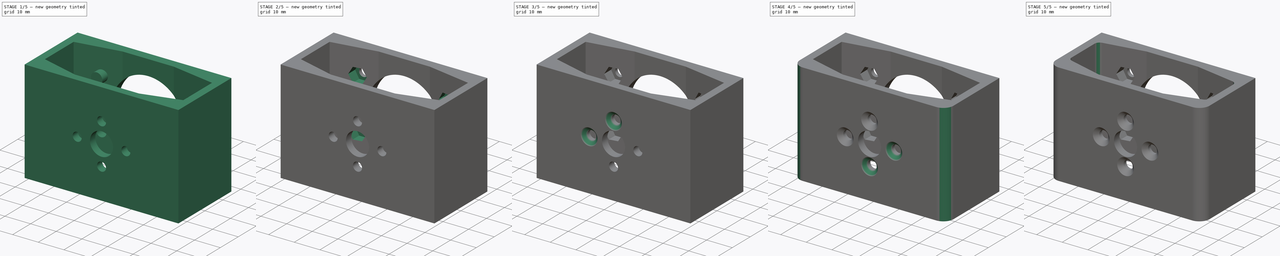
[diagram: build sequence overview — one tinted view per stage of 5, left to right]
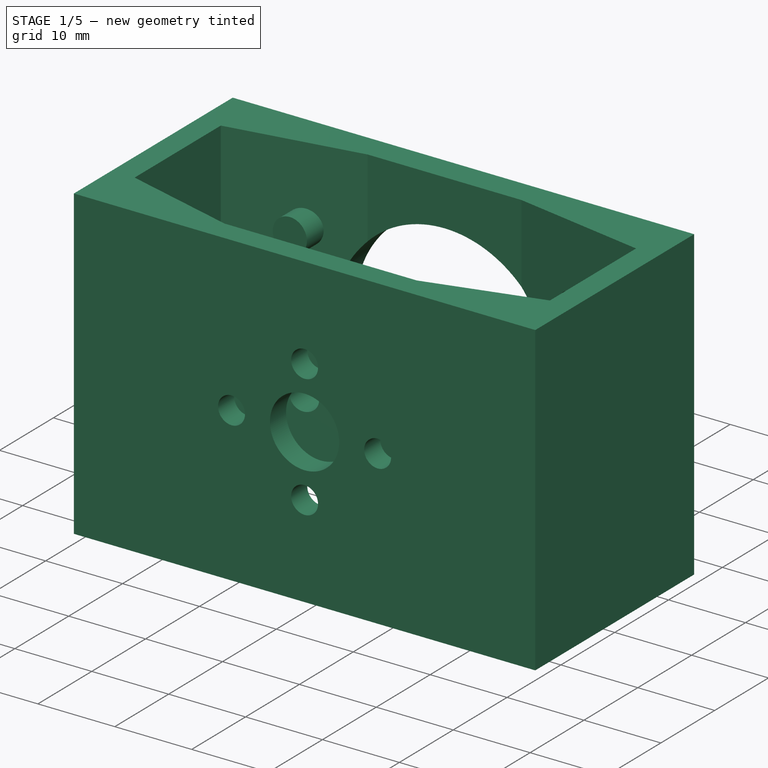
[diagram: stage 1 of 5 — iso view after this stage's code; geometry added in this stage tinted green]
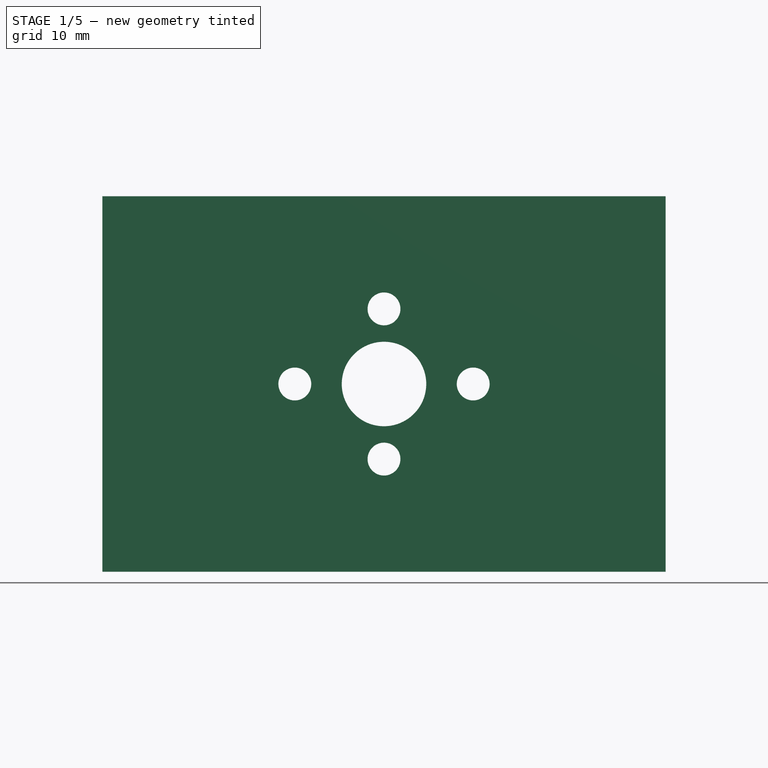
[diagram: stage 1 of 5 — front view after this stage's code; geometry added in this stage tinted green]
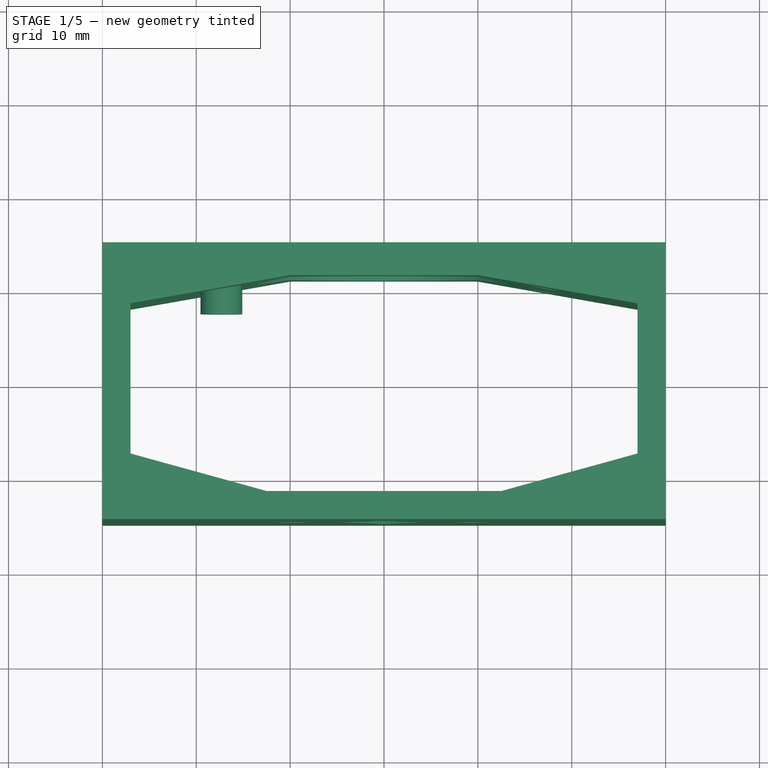
[diagram: stage 1 of 5 — top view after this stage's code; geometry added in this stage tinted green]
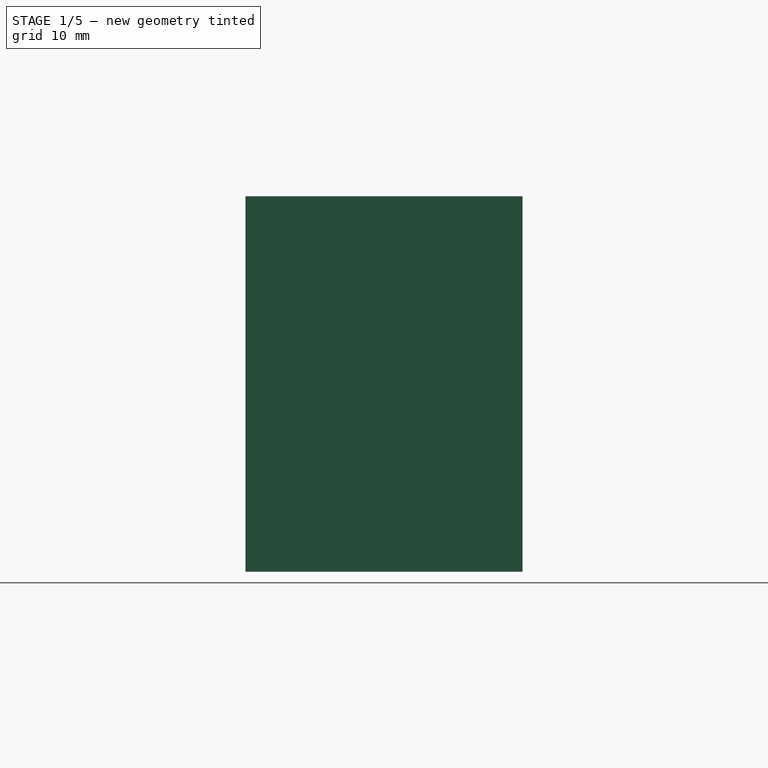
[diagram: stage 1 of 5 — right view after this stage's code; geometry added in this stage tinted green]
FCSTD DOCUMENT  (FreeCAD 0.16R6705 (Git))
Label: MotorMount5010
License: All rights reserved
LicenseURL: http://en.wikipedia.org/wiki/All_rights_reserved
objects: Sketcher::SketchObject×8, PartDesign::Chamfer×6, PartDesign::Fillet×6, PartDesign::Pocket×5, PartDesign::Pad×2
note: 34 computed .brp shape members not serialized (recipe doc carries the construction recipe); baked Part::Feature solids carry a one-line shape summary decoded from their .brp

FEATURE [Sketcher::SketchObject] Sketch  label="BaseFrame"
  sketch-geometry (13):
    g0: LineSegment StartX=30 StartY=14.75 StartZ=0 EndX=30 EndY=-14.75 EndZ=0
    g1: LineSegment StartX=30 StartY=-14.75 StartZ=0 EndX=-30 EndY=-14.75 EndZ=0
    g2: LineSegment StartX=-30 StartY=-14.75 StartZ=0 EndX=-30 EndY=14.75 EndZ=0
    g3: LineSegment StartX=-27 StartY=-7.75 StartZ=0 EndX=-12.5 EndY=-11.75 EndZ=0
    g4: LineSegment StartX=-12.5 StartY=-11.75 StartZ=0 EndX=12.5 EndY=-11.75 EndZ=0
    g5: LineSegment StartX=12.5 StartY=-11.75 StartZ=0 EndX=27 EndY=-7.75 EndZ=0
    g6: LineSegment StartX=27 StartY=-7.75 StartZ=0 EndX=27 EndY=8.25 EndZ=0
    g7: LineSegment StartX=27 StartY=8.25 StartZ=0 EndX=10 EndY=11.25 EndZ=0
    g8: LineSegment StartX=-10 StartY=11.25 StartZ=0 EndX=-27 EndY=8.25 EndZ=0
    g9: LineSegment StartX=-27 StartY=8.25 StartZ=0 EndX=-27 EndY=-7.75 EndZ=0
    g10: LineSegment [constr] StartX=-27 StartY=8.25 StartZ=0 EndX=27 EndY=8.25 EndZ=0
    g11: LineSegment StartX=-10 StartY=11.25 StartZ=0 EndX=10 EndY=11.25 EndZ=0
    g12: LineSegment StartX=-30 StartY=14.75 StartZ=0 EndX=30 EndY=14.75 EndZ=0
  constraints (36):
    c: Coincident(g0,g1)
    c: Coincident(g1,g2)
    c: Horizontal(g1)
    c: Vertical(g0)
    c: Vertical(g2)
    c: Coincident(g3,g4)
    c: Horizontal(g4)
    c: Coincident(g4,g5)
    c: Coincident(g5,g6)
    c: Vertical(g6)
    c: Coincident(g6,g7)
    c: Coincident(g8,g9)
    c: Coincident(g9,g3)
    c: Vertical(g9)
    c: Symmetric(g1,g0,g-1)
    c: Symmetric(g3,g4,g-2)
    c: Symmetric(g3,g5,g-2)
    c: Symmetric(g7,g8,g-2)
    c: DistanceX(g3,g4) = 25
    c: DistanceY(g4,g5) = 4
    c: DistanceX(g3,g5) = 54
    c: DistanceY(g1,g3) = 3
    c: DistanceY(g4,g6) = 20
    c: Coincident(g10,g8)
    c: Coincident(g10,g6)
    c: Horizontal(g10)
    c: Coincident(g11,g8)
    c: Coincident(g11,g7)
    c: DistanceY(g8,g3) = -23
    c: DistanceX(g1,g0) = 60
    c: DistanceX(g7,g8) = -20
    c: Coincident(g12,g2)
    c: Coincident(g12,g0)
    c: Horizontal(g12)
    c: DistanceY(g4,g2) = 26.5
    c: DistanceY(g6,g0) = 6.5
FEATURE [PartDesign::Pad] Pad
  Length = 40
  Length2 = 100
  Midplane = true
  Sketch = -> Sketch
  Type = 0
FEATURE [Sketcher::SketchObject] Sketch020  label="MountBracketToFixedRing"
  Placement = pos=(0,14.75,0) rot=(0,0.707107,0.707107;3.14159rad)
  Support = -> Pad [Face4]
  sketch-geometry (12):
    g0: LineSegment [constr] StartX=-17.3205 StartY=10 StartZ=0 EndX=17.3205 EndY=10 EndZ=0
    g1: LineSegment [constr] StartX=17.3205 StartY=10 StartZ=0 EndX=17.3205 EndY=-10 EndZ=0
    g2: LineSegment [constr] StartX=17.3205 StartY=-10 StartZ=0 EndX=-17.3205 EndY=-10 EndZ=0
    g3: LineSegment [constr] StartX=-17.3205 StartY=-10 StartZ=0 EndX=-17.3205 EndY=10 EndZ=0
    g4: Circle CenterX=-17.3205 CenterY=10 CenterZ=0 NormalX=0 NormalY=0 NormalZ=1 Radius=1.7
    g5: Circle CenterX=-17.3205 CenterY=-10 CenterZ=0 NormalX=0 NormalY=0 NormalZ=1 Radius=1.7
    g6: Circle CenterX=17.3205 CenterY=10 CenterZ=0 NormalX=0 NormalY=0 NormalZ=1 Radius=1.7
    g7: Circle CenterX=17.3205 CenterY=-10 CenterZ=0 NormalX=0 NormalY=0 NormalZ=1 Radius=1.7
    g8: Circle [constr] CenterX=0 CenterY=0 CenterZ=0 NormalX=0 NormalY=0 NormalZ=1 Radius=20
    g9: Circle CenterX=0 CenterY=0 CenterZ=0 NormalX=0 NormalY=0 NormalZ=1 Radius=14
    g10: LineSegment [constr] StartX=-17.3205 StartY=10 StartZ=0 EndX=0 EndY=0 EndZ=0
    g11: LineSegment [constr] StartX=-17.3205 StartY=-10 StartZ=0 EndX=0 EndY=0 EndZ=0
  constraints (28):
    c: Coincident(g0,g1)
    c: Coincident(g1,g2)
    c: Coincident(g2,g3)
    c: Coincident(g3,g0)
    c: Horizontal(g0)
    c: Horizontal(g2)
    c: Vertical(g1)
    c: Vertical(g3)
    c: Coincident(g4,g0)
    c: Coincident(g6,g0)
    c: Coincident(g7,g1)
    c: Radius(g7) = 1.7
    c: Equal(g7,g6)
    c: Equal(g7,g4)
    c: Equal(g7,g5)
    c: Coincident(g5,g2)
    c: PointOnObject(g0,g8)
    c: PointOnObject(g2,g8)
    c: PointOnObject(g0,g8)
    c: Coincident(g8,g-1)
    c: Coincident(g9,g-1)
    c: Radius(g9) = 14
    c: Radius(g8) = 20
    c: Coincident(g10,g0)
    c: Coincident(g10,g-1)
    c: Coincident(g11,g2)
    c: Coincident(g11,g-1)
    c: Angle(g10,g11) = 1.0472
FEATURE [PartDesign::Pocket] Pocket
  Length = 20
  Sketch = -> Sketch020
  Type = 0
FEATURE [Sketcher::SketchObject] Sketch001  label="MotorMountingHoles"
  Placement = pos=(0,-14.75,0) rot=(1,0,0;1.5708rad)
  Support = -> Pocket [Face3]
  sketch-geometry (5):
    g0: Circle CenterX=0 CenterY=8 CenterZ=0 NormalX=0 NormalY=0 NormalZ=1 Radius=1.75
    g1: Circle CenterX=0 CenterY=-8 CenterZ=0 NormalX=0 NormalY=0 NormalZ=1 Radius=1.75
    g2: Circle CenterX=-9.5 CenterY=0 CenterZ=0 NormalX=0 NormalY=0 NormalZ=1 Radius=1.75
    g3: Circle CenterX=9.5 CenterY=0 CenterZ=0 NormalX=0 NormalY=0 NormalZ=1 Radius=1.75
    g4: Circle CenterX=0 CenterY=0 CenterZ=0 NormalX=0 NormalY=0 NormalZ=1 Radius=4.5
  constraints (12):
    c: Coincident(g-1,g4)
    c: PointOnObject(g3,g-1)
    c: PointOnObject(g0,g-2)
    c: Symmetric(g3,g2,g-1)
    c: Symmetric(g0,g1,g-1)
    c: Radius(g2) = 1.75
    c: Equal(g2,g3)
    c: Equal(g2,g0)
    c: Equal(g2,g1)
    c: Radius(g4) = 4.5
    c: DistanceY(g1,g0) = 16
    c: DistanceX(g2,g3) = 19
FEATURE [PartDesign::Pocket] Pocket001
  Length = 5
  Sketch = -> Sketch001
  Type = 0
FEATURE [Sketcher::SketchObject] Sketch006
  Placement = pos=(0,-14.75,0) rot=(1,0,0;1.5708rad)
  Support = -> Pocket001 [Face3]
  sketch-geometry (13):
    g0: LineSegment [constr] StartX=-28.6 StartY=1.03055 StartZ=0 EndX=-28.6 EndY=5.23055 EndZ=0
    g1: LineSegment [constr] StartX=-27 StartY=15 StartZ=0 EndX=-27 EndY=5.23055 EndZ=0
    g2: GeomPoint [constr] X=-27.8 Y=3.13055 Z=0
    g3: LineSegment [constr] StartX=-28.6 StartY=-5.23055 StartZ=0 EndX=-28.6 EndY=-1.03055 EndZ=0
    g4: GeomPoint [constr] X=-27.8 Y=-3.13055 Z=0
    g5: LineSegment [constr] StartX=-27.8 StartY=-3.13055 StartZ=0 EndX=0 EndY=0 EndZ=0
    g6: LineSegment [constr] StartX=-27.8 StartY=3.13055 StartZ=0 EndX=0 EndY=0 EndZ=0
    g7: LineSegment [constr] StartX=-28.6 StartY=5.23055 StartZ=0 EndX=-26.6 EndY=5.23055 EndZ=0
    g8: LineSegment [constr] StartX=-28.6 StartY=1.03055 StartZ=0 EndX=-26.6 EndY=1.03055 EndZ=0
    g9: LineSegment [constr] StartX=-28.6 StartY=-1.03055 StartZ=0 EndX=-26.6 EndY=-1.03055 EndZ=0
    g10: LineSegment [constr] StartX=-28.6 StartY=-5.23055 StartZ=0 EndX=-26.6 EndY=-5.23055 EndZ=0
    g11: LineSegment [constr] StartX=-26.6 StartY=5.23055 StartZ=0 EndX=-26.6 EndY=1.03055 EndZ=0
    g12: LineSegment [constr] StartX=-26.6 StartY=-1.03055 StartZ=0 EndX=-26.6 EndY=-5.23055 EndZ=0
  constraints (30):
    c: Vertical(g0)
    c: DistanceY(g0,g0) = 4.2
    c: DistanceX(g1,g0) = -1.6
    c: Vertical(g1)
    c: Vertical(g3)
    c: Symmetric(g3,g0,g-1)
    c: Symmetric(g4,g2,g-1)
    c: Coincident(g5,g4)
    c: Coincident(g5,g-1)
    c: Coincident(g6,g2)
    c: Coincident(g6,g-1)
    c: Angle(g6,g5) = 0.224275
    c: Symmetric(g1,g0,g2)
    c: Horizontal(g7)
    c: PointOnObject(g1,g7)
    c: Coincident(g0,g7)
    c: Coincident(g8,g0)
    c: Horizontal(g8)
    c: Coincident(g9,g3)
    c: Horizontal(g9)
    c: Horizontal(g10)
    c: Coincident(g11,g7)
    c: Vertical(g11)
    c: Coincident(g12,g9)
    c: Vertical(g12)
    c: Coincident(g12,g10)
    c: Coincident(g10,g3)
    c: Coincident(g8,g11)
    c: Symmetric(g9,g8,g-1)
    c: DistanceX(g10,g3) = -2
FEATURE [Sketcher::SketchObject] Sketch024  label="NutOffsetPillar"
  Placement = pos=(0,11.25,0) rot=(1,0,0;1.5708rad)
  Support = -> Pocket001 [Face25]
  sketch-geometry (2):
    g0: Circle CenterX=-17.3205 CenterY=10 CenterZ=0 NormalX=0 NormalY=0 NormalZ=1 Radius=2.22057
    g1: LineSegment [constr] StartX=0 StartY=0 StartZ=0 EndX=-17.3205 EndY=10 EndZ=0
  constraints (4):
    c: Coincident(g1,g-1)
    c: Coincident(g1,g0)
    c: Distance(g-1,g0) = 20
    c: Angle(g-2,g1) = 1.0472
FEATURE [PartDesign::Pad] Pad001
  Length = 4
  Length2 = 100
  Sketch = -> Sketch024
  Type = 0
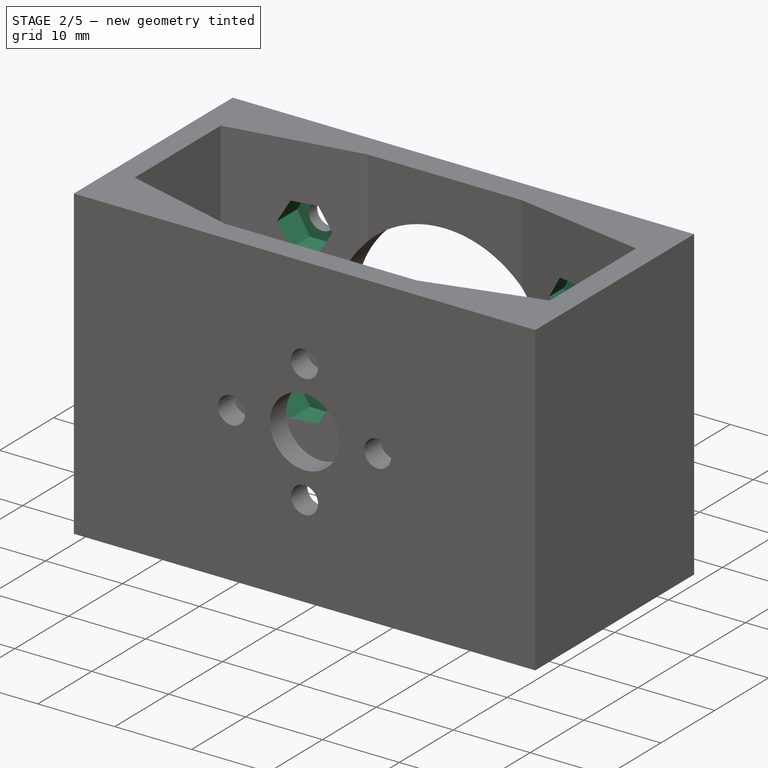
[diagram: stage 2 of 5 — iso view after this stage's code; geometry added in this stage tinted green]
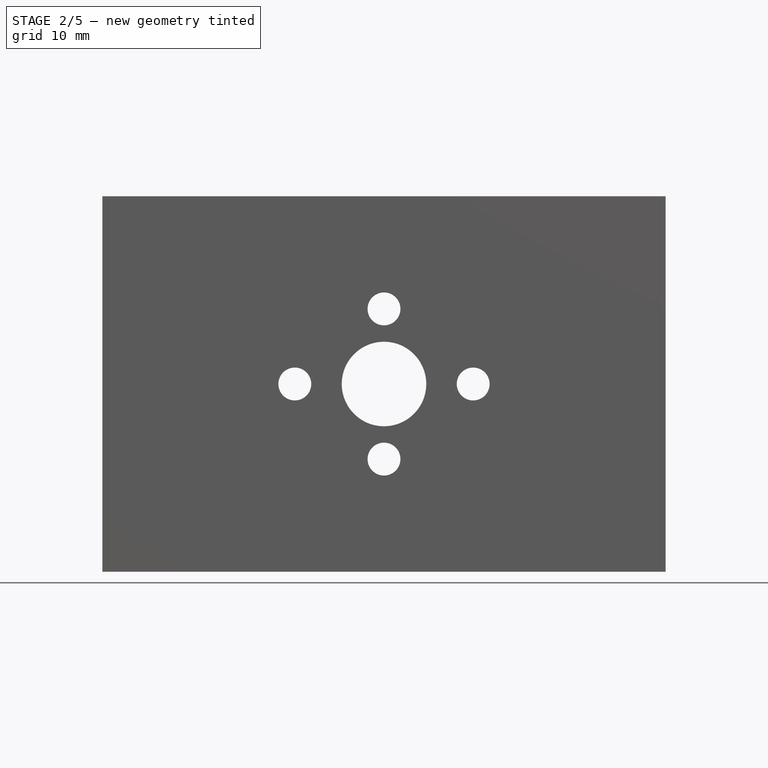
[diagram: stage 2 of 5 — front view after this stage's code; geometry added in this stage tinted green]
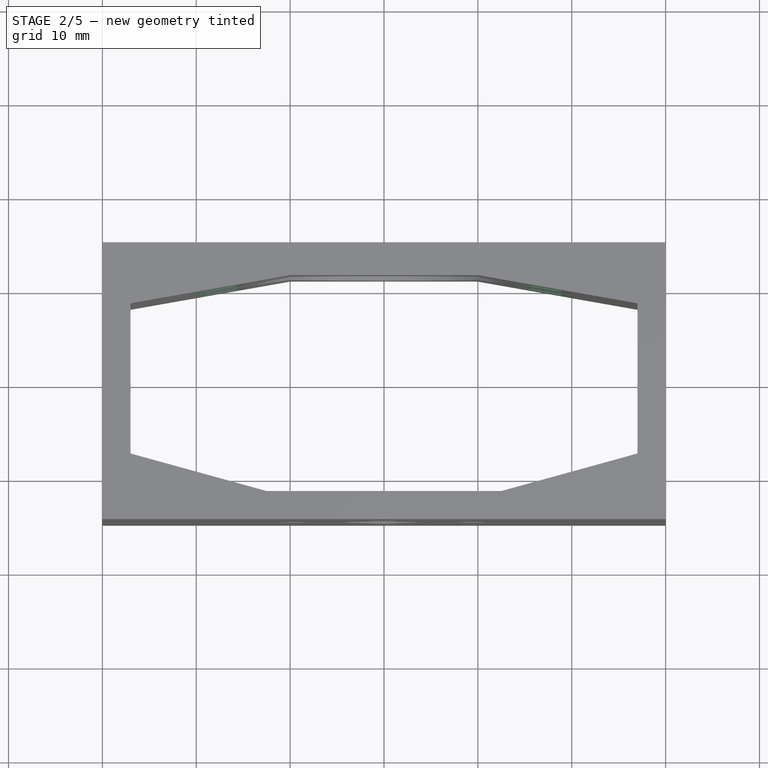
[diagram: stage 2 of 5 — top view after this stage's code; geometry added in this stage tinted green]
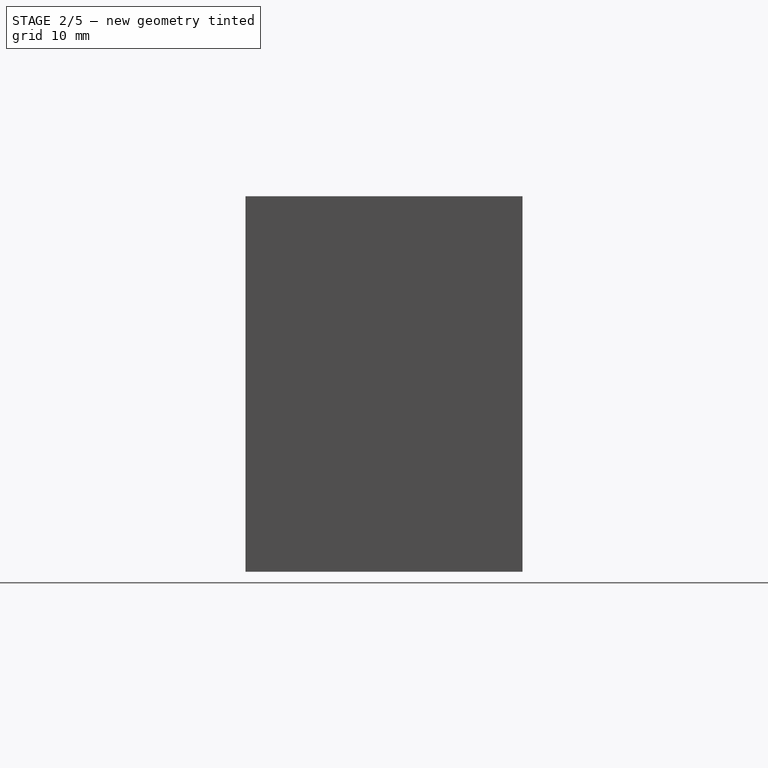
[diagram: stage 2 of 5 — right view after this stage's code; geometry added in this stage tinted green]
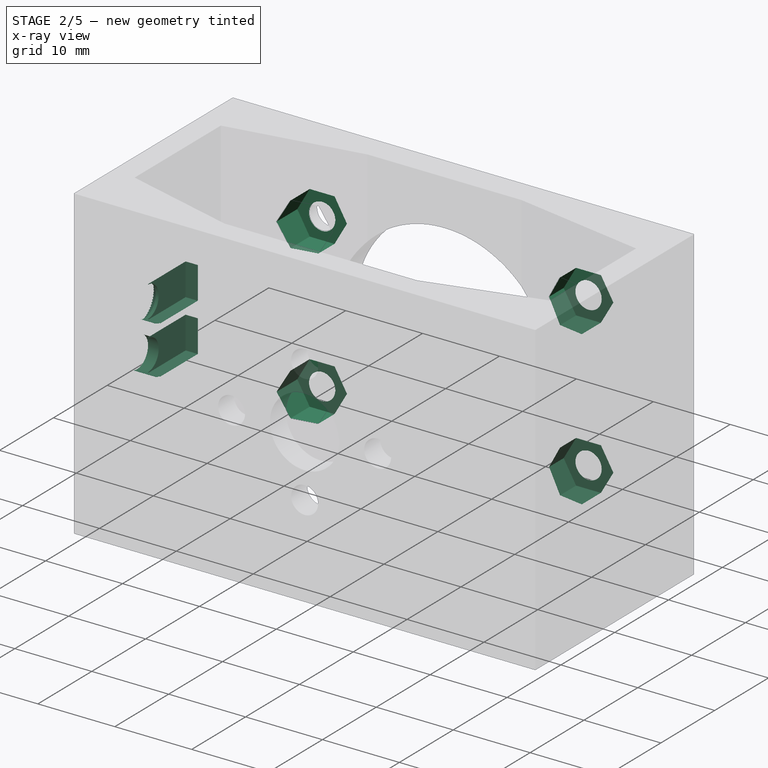
[diagram: stage 2 of 5 — x-ray composite at the iso view; earlier geometry ghosted, this stage's added geometry solid]
FEATURE [Sketcher::SketchObject] Sketch021  label="NutHoles"
  Placement = pos=(0,7.25,0) rot=(1,0,0;1.5708rad)
  Support = -> Pad001 [Face28]
  sketch-geometry (40):
    g0: LineSegment [constr] StartX=-17.3205 StartY=10 StartZ=0 EndX=17.3205 EndY=10 EndZ=0
    g1: LineSegment [constr] StartX=17.3205 StartY=10 StartZ=0 EndX=17.3205 EndY=-10 EndZ=0
    g2: LineSegment [constr] StartX=17.3205 StartY=-10 StartZ=0 EndX=-17.3205 EndY=-10 EndZ=0
    g3: LineSegment [constr] StartX=-17.3205 StartY=-10 StartZ=0 EndX=-17.3205 EndY=10 EndZ=0
    g4: Circle [constr] CenterX=0 CenterY=0 CenterZ=0 NormalX=0 NormalY=0 NormalZ=1 Radius=20
    g5: Circle [constr] CenterX=0 CenterY=0 CenterZ=0 NormalX=0 NormalY=0 NormalZ=1 Radius=14
    g6: LineSegment StartX=-18.9371 StartY=12.8 StartZ=0 EndX=-20.5537 EndY=10 EndZ=0
    g7: LineSegment StartX=-20.5537 StartY=10 StartZ=0 EndX=-18.9371 EndY=7.2 EndZ=0
    g8: LineSegment StartX=-18.9371 StartY=7.2 StartZ=0 EndX=-15.7039 EndY=7.2 EndZ=0
    g9: LineSegment StartX=-15.7039 StartY=7.2 StartZ=0 EndX=-14.0873 EndY=10 EndZ=0
    g10: LineSegment StartX=-14.0873 StartY=10 StartZ=0 EndX=-15.7039 EndY=12.8 EndZ=0
    g11: LineSegment StartX=-15.7039 StartY=12.8 StartZ=0 EndX=-18.9371 EndY=12.8 EndZ=0
    g12: Circle [constr] CenterX=-17.3205 CenterY=10 CenterZ=0 NormalX=0 NormalY=0 NormalZ=1 Radius=3.23316
    g13: LineSegment StartX=15.7039 StartY=12.8 StartZ=0 EndX=14.0873 EndY=10 EndZ=0
    g14: LineSegment StartX=14.0873 StartY=10 StartZ=0 EndX=15.7039 EndY=7.2 EndZ=0
    g15: LineSegment StartX=15.7039 StartY=7.2 StartZ=0 EndX=18.9371 EndY=7.2 EndZ=0
    g16: LineSegment StartX=18.9371 StartY=7.2 StartZ=0 EndX=20.5537 EndY=10 EndZ=0
    g17: LineSegment StartX=20.5537 StartY=10 StartZ=0 EndX=18.9371 EndY=12.8 EndZ=0
    g18: LineSegment StartX=18.9371 StartY=12.8 StartZ=0 EndX=15.7039 EndY=12.8 EndZ=0
    g19: Circle [constr] CenterX=17.3205 CenterY=10 CenterZ=0 NormalX=0 NormalY=0 NormalZ=1 Radius=3.23316
    g20: LineSegment StartX=-18.9371 StartY=-7.2 StartZ=0 EndX=-20.5537 EndY=-10 EndZ=0
    g21: LineSegment StartX=-20.5537 StartY=-10 StartZ=0 EndX=-18.9371 EndY=-12.8 EndZ=0
    g22: LineSegment StartX=-18.9371 StartY=-12.8 StartZ=0 EndX=-15.7039 EndY=-12.8 EndZ=0
    g23: LineSegment StartX=-15.7039 StartY=-12.8 StartZ=0 EndX=-14.0873 EndY=-10 EndZ=0
    g24: LineSegment StartX=-14.0873 StartY=-10 StartZ=0 EndX=-15.7039 EndY=-7.2 EndZ=0
    g25: LineSegment StartX=-15.7039 StartY=-7.2 StartZ=0 EndX=-18.9371 EndY=-7.2 EndZ=0
    g26: Circle [constr] CenterX=-17.3205 CenterY=-10 CenterZ=0 NormalX=0 NormalY=0 NormalZ=1 Radius=3.23316
    g27: LineSegment StartX=15.7039 StartY=-7.2 StartZ=0 EndX=14.0873 EndY=-10 EndZ=0
    g28: LineSegment StartX=14.0873 StartY=-10 StartZ=0 EndX=15.7039 EndY=-12.8 EndZ=0
    g29: LineSegment StartX=15.7039 StartY=-12.8 StartZ=0 EndX=18.9371 EndY=-12.8 EndZ=0
    g30: LineSegment StartX=18.9371 StartY=-12.8 StartZ=0 EndX=20.5537 EndY=-10 EndZ=0
    g31: LineSegment StartX=20.5537 StartY=-10 StartZ=0 EndX=18.9371 EndY=-7.2 EndZ=0
    g32: LineSegment StartX=18.9371 StartY=-7.2 StartZ=0 EndX=15.7039 EndY=-7.2 EndZ=0
    g33: Circle [constr] CenterX=17.3205 CenterY=-10 CenterZ=0 NormalX=0 NormalY=0 NormalZ=1 Radius=3.23316
    g34: LineSegment [constr] StartX=-15.7039 StartY=12.8 StartZ=0 EndX=15.7039 EndY=12.8 EndZ=0
    g35: LineSegment [constr] StartX=-18.9371 StartY=7.2 StartZ=0 EndX=-18.9371 EndY=-7.2 EndZ=0
    g36: LineSegment [constr] StartX=-15.7039 StartY=-7.2 StartZ=0 EndX=15.7039 EndY=-7.2 EndZ=0
    g37: LineSegment [constr] StartX=15.7039 StartY=7.2 StartZ=0 EndX=15.7039 EndY=-7.2 EndZ=0
    g38: LineSegment [constr] StartX=-17.3205 StartY=10 StartZ=0 EndX=0 EndY=0 EndZ=0
    g39: LineSegment [constr] StartX=-17.3205 StartY=-10 StartZ=0 EndX=0 EndY=0 EndZ=0
  constraints (92):
    c: Coincident(g0,g1)
    c: Coincident(g1,g2)
    c: Coincident(g2,g3)
    c: Coincident(g3,g0)
    c: Horizontal(g0)
    c: Horizontal(g2)
    c: Vertical(g1)
    c: Vertical(g3)
    c: PointOnObject(g0,g4)
    c: PointOnObject(g2,g4)
    c: PointOnObject(g0,g4)
    c: Coincident(g4,g-1)
    c: Coincident(g5,g-1)
    c: Radius(g5) = 14
    c: Coincident(g6,g7)
    c: Coincident(g7,g8)
    c: Coincident(g8,g9)
    c: Coincident(g9,g10)
    c: Coincident(g10,g11)
    c: Coincident(g11,g6)
    c: Equal(g6, g7-g11) x5
    c: PointOnObject(g6,g12)
    c: PointOnObject(g7,g12)
    c: PointOnObject(g8,g12)
    c: PointOnObject(g9,g12)
    c: PointOnObject(g10,g12)
    c: PointOnObject(g11,g12)
    c: Coincident(g12,g0)
    c: Coincident(g13,g14)
    c: Coincident(g14,g15)
    c: Coincident(g15,g16)
    c: Coincident(g16,g17)
    c: Coincident(g17,g18)
    c: Coincident(g18,g13)
    c: Equal(g13, g14-g18) x5
    c: PointOnObject(g13,g19)
    c: PointOnObject(g14,g19)
    c: PointOnObject(g15,g19)
    c: PointOnObject(g16,g19)
    c: PointOnObject(g17,g19)
    c: PointOnObject(g18,g19)
    c: Coincident(g19,g0)
    c: Coincident(g20,g21)
    c: Coincident(g21,g22)
    c: Coincident(g22,g23)
    c: Coincident(g23,g24)
    c: Coincident(g24,g25)
    c: Coincident(g25,g20)
    c: Equal(g20, g21-g25) x5
    c: PointOnObject(g20,g26)
    c: PointOnObject(g21,g26)
    c: PointOnObject(g22,g26)
    c: PointOnObject(g23,g26)
    c: PointOnObject(g24,g26)
    c: PointOnObject(g25,g26)
    c: Coincident(g26,g2)
    c: Coincident(g27,g28)
    c: Coincident(g28,g29)
    c: Coincident(g29,g30)
    c: Coincident(g30,g31)
    c: Coincident(g31,g32)
    c: Coincident(g32,g27)
    c: Equal(g27, g28-g32) x5
    c: PointOnObject(g27,g33)
    c: PointOnObject(g28,g33)
    c: PointOnObject(g29,g33)
    c: PointOnObject(g30,g33)
    c: PointOnObject(g31,g33)
    c: PointOnObject(g32,g33)
    c: Coincident(g33,g1)
    c: Horizontal(g22)
    c: Horizontal(g8)
    c: Horizontal(g15)
    c: Horizontal(g29)
    c: Coincident(g34,g10)
    c: Coincident(g34,g13)
    c: Horizontal(g34)
    c: Coincident(g35,g7)
    c: Coincident(g35,g20)
    c: Vertical(g35)
    c: Coincident(g36,g24)
    c: Coincident(g36,g27)
    c: Horizontal(g36)
    c: Coincident(g37,g14)
    c: Coincident(g37,g27)
    c: DistanceY(g7,g6) = 5.6
    c: Radius(g4) = 20
    c: Coincident(g38,g0)
    c: Coincident(g38,g-1)
    c: Coincident(g39,g2)
    c: Coincident(g39,g-1)
    c: Angle(g38,g39) = 1.0472
FEATURE [PartDesign::Pocket] Pocket003
  Length = 6
  Sketch = -> Sketch021
  Type = 0
FEATURE [Sketcher::SketchObject] Sketch022  label="SensorWireHoles"
  Placement = pos=(-30,0,0) rot=(0.57735,-0.57735,-0.57735;2.0944rad)
  Support = -> Pocket003 [Face6]
  sketch-geometry (3):
    g0: Circle CenterX=3 CenterY=3.13 CenterZ=0 NormalX=0 NormalY=0 NormalZ=1 Radius=2
    g1: Circle CenterX=3 CenterY=-3.13 CenterZ=0 NormalX=0 NormalY=0 NormalZ=1 Radius=2
    g2: LineSegment [constr] StartX=3 StartY=3.13 StartZ=0 EndX=3 EndY=-3.13 EndZ=0
  constraints (8):
    c: Coincident(g2,g0)
    c: Coincident(g2,g1)
    c: Vertical(g2)
    c: Symmetric(g1,g0,g-1)
    c: Radius(g0) = 2
    c: Equal(g0,g1)
    c: DistanceX(g-1,g0) = 3
    c: DistanceY(g-1,g0) = 3.13
FEATURE [PartDesign::Pocket] Pocket004
  Length = 5
  Sketch = -> Sketch022
  Type = 2
FEATURE [Sketcher::SketchObject] Sketch023  label="SensorGrooves"
  Placement = pos=(-27,0,0) rot=(0.57735,0.57735,0.57735;2.0944rad)
  Support = -> Pocket004 [Face13]
  sketch-geometry (10):
    g0: LineSegment StartX=-3 StartY=5.23 StartZ=0 EndX=4 EndY=5.23 EndZ=0
    g1: LineSegment StartX=4 StartY=5.23 StartZ=0 EndX=4 EndY=1.03 EndZ=0
    g2: LineSegment StartX=4 StartY=1.03 StartZ=0 EndX=-3 EndY=1.03 EndZ=0
    g3: LineSegment StartX=-3 StartY=1.03 StartZ=0 EndX=-3 EndY=5.23 EndZ=0
    g4: LineSegment StartX=-3 StartY=-1.03 StartZ=0 EndX=4 EndY=-1.03 EndZ=0
    g5: LineSegment StartX=4 StartY=-1.03 StartZ=0 EndX=4 EndY=-5.23 EndZ=0
    g6: LineSegment StartX=4 StartY=-5.23 StartZ=0 EndX=-3 EndY=-5.23 EndZ=0
    g7: LineSegment StartX=-3 StartY=-5.23 StartZ=0 EndX=-3 EndY=-1.03 EndZ=0
    g8: GeomPoint [constr] X=-3 Y=3.13 Z=0
    g9: GeomPoint [constr] X=-3 Y=-3.13 Z=0
  constraints (26):
    c: Coincident(g0,g1)
    c: Coincident(g1,g2)
    c: Coincident(g2,g3)
    c: Coincident(g3,g0)
    c: Horizontal(g0)
    c: Horizontal(g2)
    c: Vertical(g1)
    c: Vertical(g3)
    c: Coincident(g4,g5)
    c: Coincident(g5,g6)
    c: Coincident(g6,g7)
    c: Coincident(g7,g4)
    c: Horizontal(g4)
    c: Horizontal(g6)
    c: Vertical(g5)
    c: Vertical(g7)
    c: Symmetric(g2,g4,g-1)
    c: Symmetric(g0,g5,g-1)
    c: DistanceY(g2,g0) = 4.2
    c: PointOnObject(g8,g3)
    c: PointOnObject(g9,g7)
    c: Symmetric(g2,g0,g8)
    c: Symmetric(g6,g4,g9)
    c: DistanceY(g-1,g8) = 3.13
    c: DistanceX(g0,g0) = 7
    c: DistanceX(g-1,g0) = -3
FEATURE [PartDesign::Pocket] Pocket005  label="FinalBeforeChamfer"
  Length = 1.6
  Sketch = -> Sketch023
  Type = 0
FEATURE [PartDesign::Chamfer] Chamfer
  Base = -> Pocket005 [Edge39]
  Size = 1
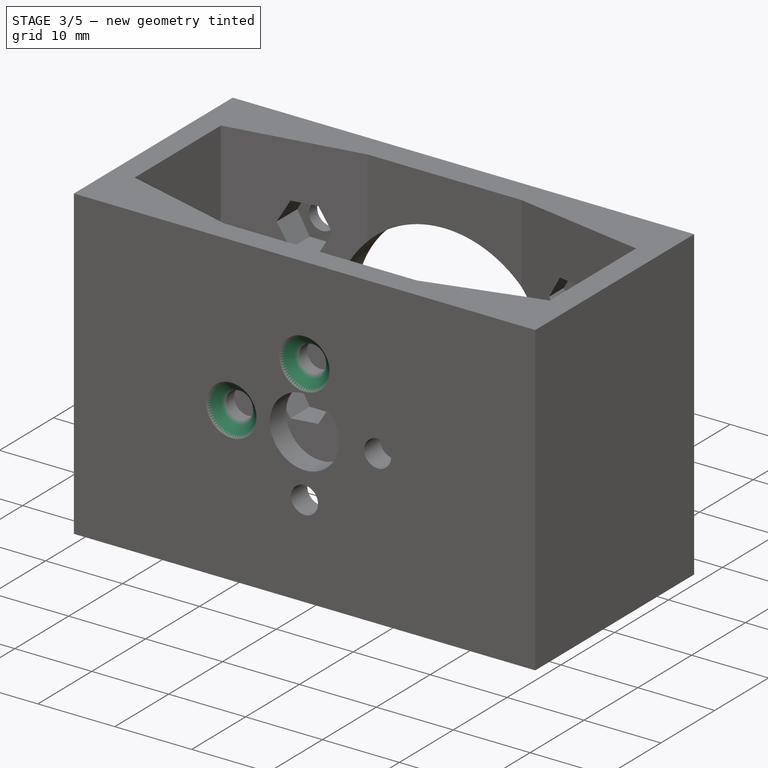
[diagram: stage 3 of 5 — iso view after this stage's code; geometry added in this stage tinted green]
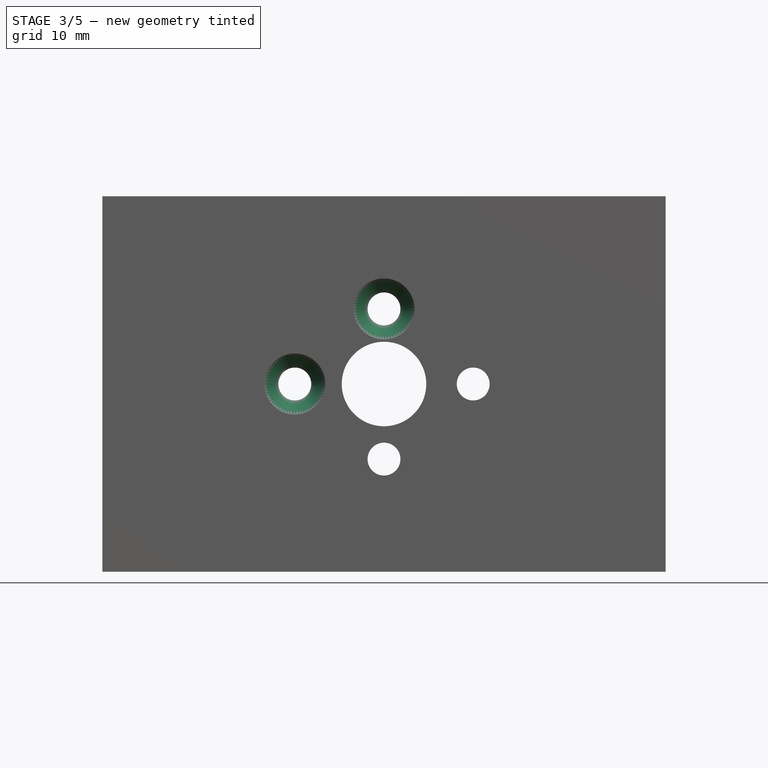
[diagram: stage 3 of 5 — front view after this stage's code; geometry added in this stage tinted green]
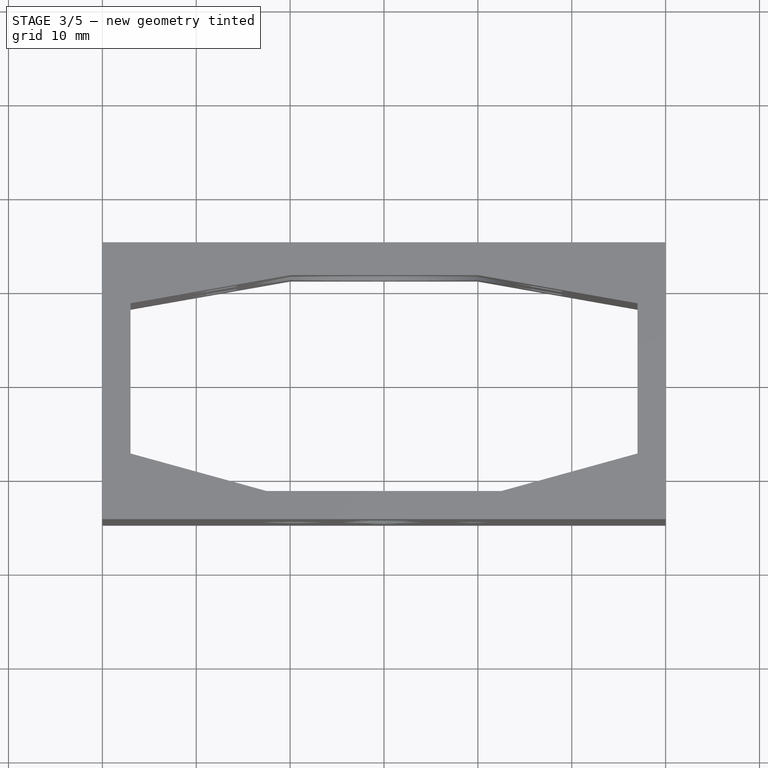
[diagram: stage 3 of 5 — top view after this stage's code; geometry added in this stage tinted green]
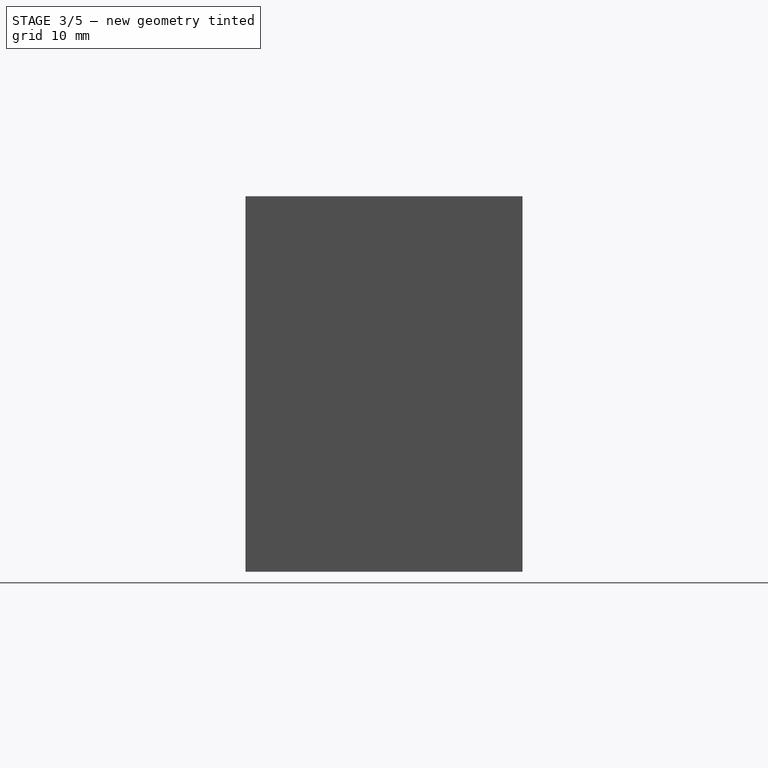
[diagram: stage 3 of 5 — right view after this stage's code; geometry added in this stage tinted green]
FEATURE [PartDesign::Chamfer] Chamfer001
  Base = -> Chamfer [Edge6]
  Size = 1
FEATURE [PartDesign::Chamfer] Chamfer002
  Base = -> Chamfer001 [Edge17]
  Size = 1.5
FEATURE [PartDesign::Chamfer] Chamfer003
  Base = -> Chamfer002 [Edge9]
  Size = 1.5
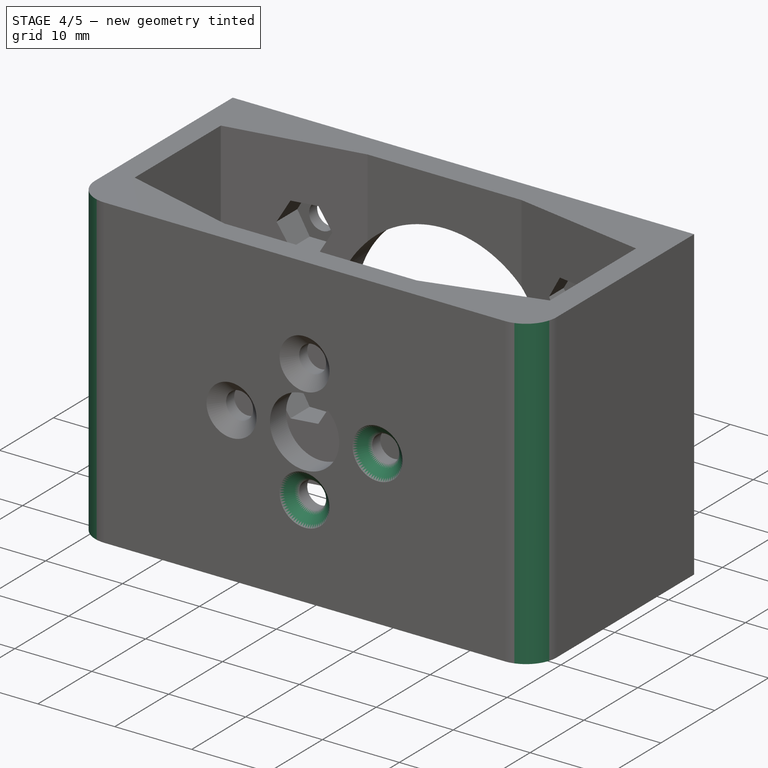
[diagram: stage 4 of 5 — iso view after this stage's code; geometry added in this stage tinted green]
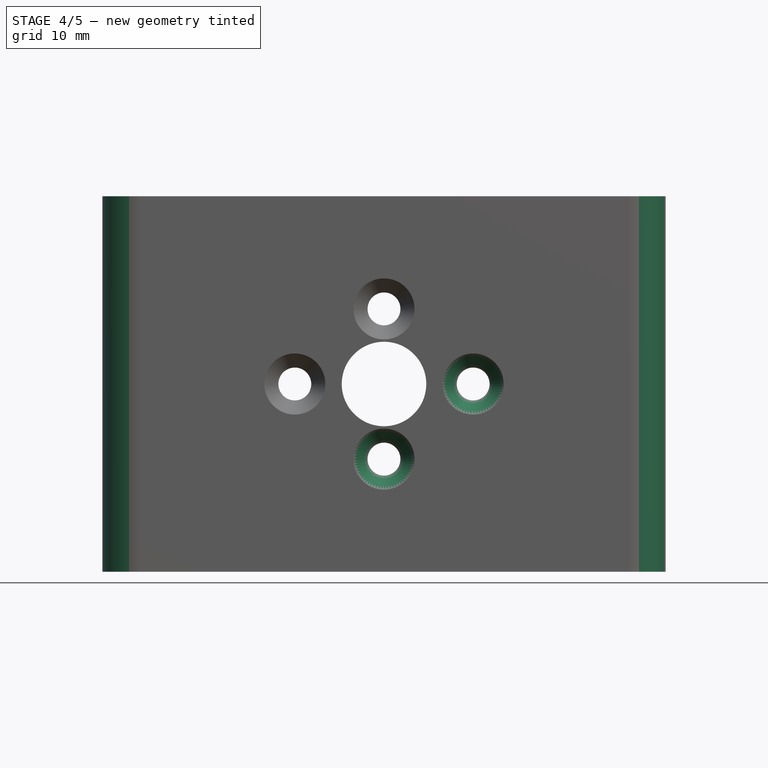
[diagram: stage 4 of 5 — front view after this stage's code; geometry added in this stage tinted green]
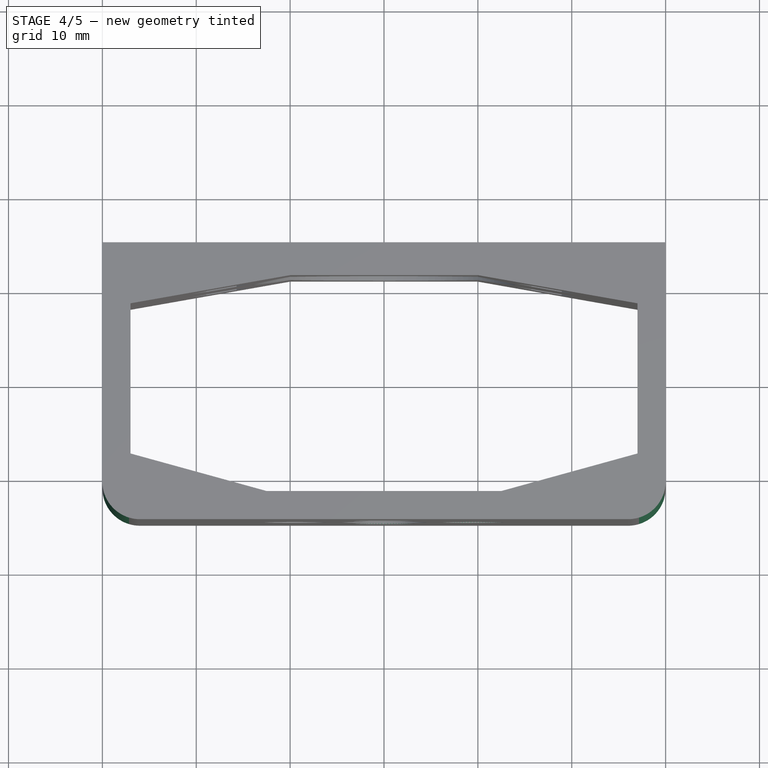
[diagram: stage 4 of 5 — top view after this stage's code; geometry added in this stage tinted green]
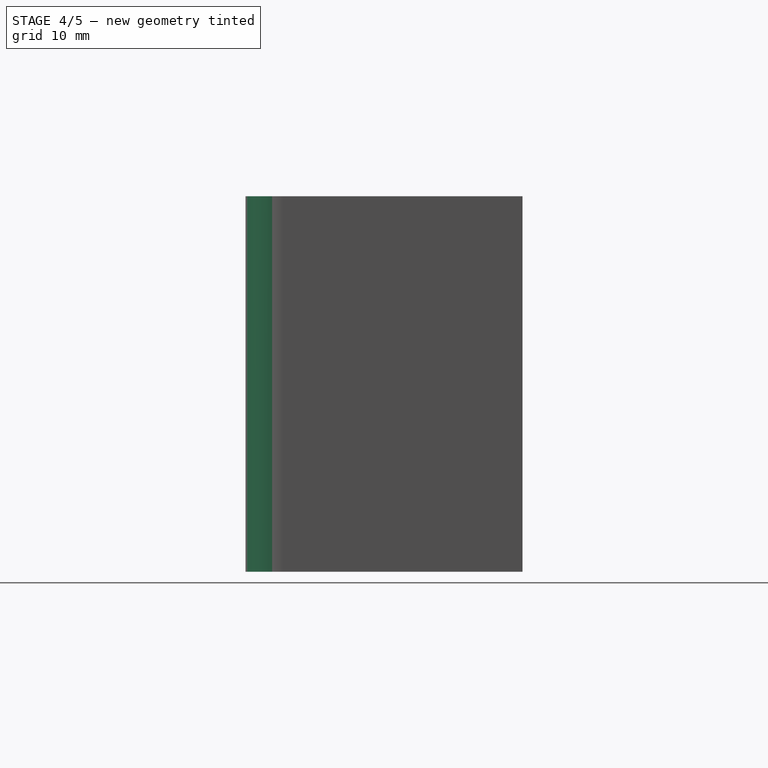
[diagram: stage 4 of 5 — right view after this stage's code; geometry added in this stage tinted green]
FEATURE [PartDesign::Chamfer] Chamfer004
  Base = -> Chamfer003 [Edge8]
  Size = 1.5
FEATURE [PartDesign::Chamfer] Chamfer005
  Base = -> Chamfer004 [Edge9]
  Size = 1.5
FEATURE [PartDesign::Fillet] Fillet
  Base = -> Chamfer005 [Edge8]
  Radius = 4
FEATURE [PartDesign::Fillet] Fillet001
  Base = -> Fillet [Edge3]
  Radius = 4
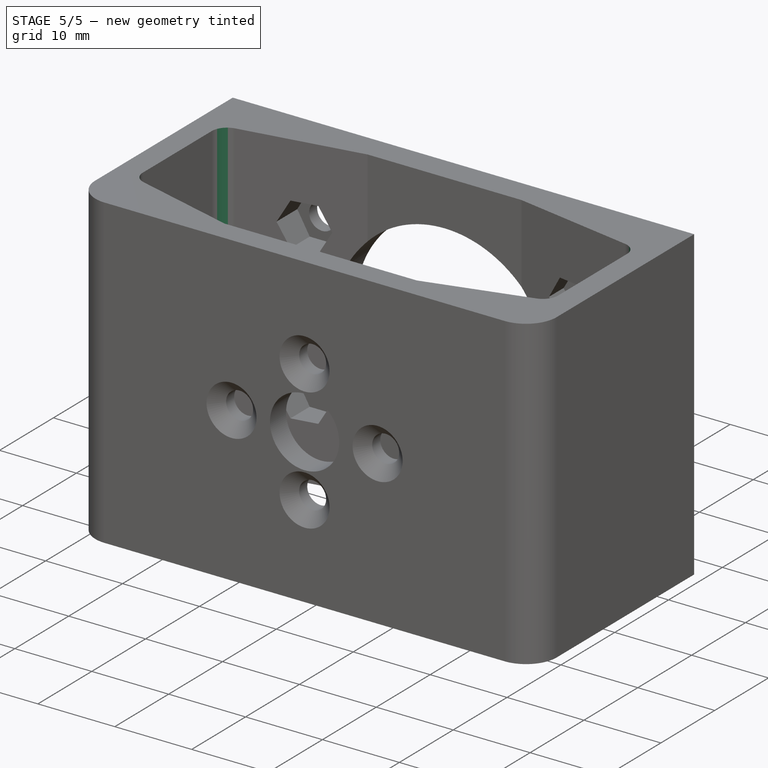
[diagram: stage 5 of 5 — iso view after this stage's code; geometry added in this stage tinted green]
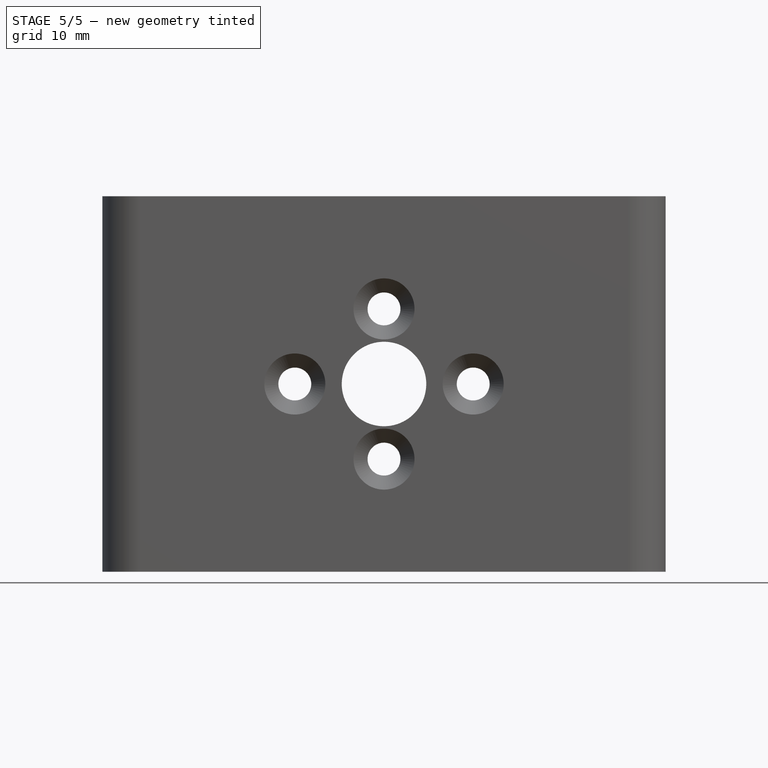
[diagram: stage 5 of 5 — front view after this stage's code; geometry added in this stage tinted green]
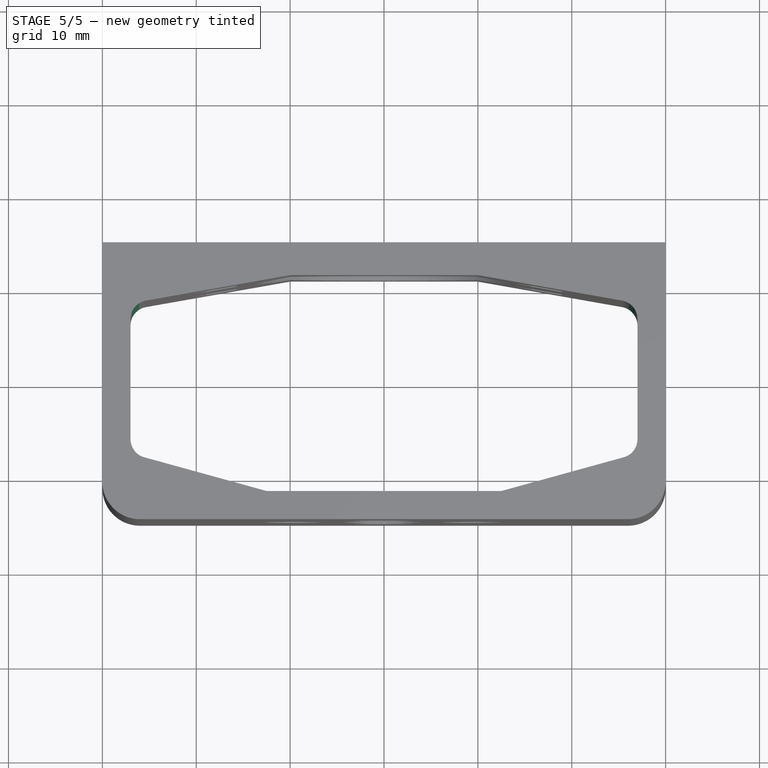
[diagram: stage 5 of 5 — top view after this stage's code; geometry added in this stage tinted green]
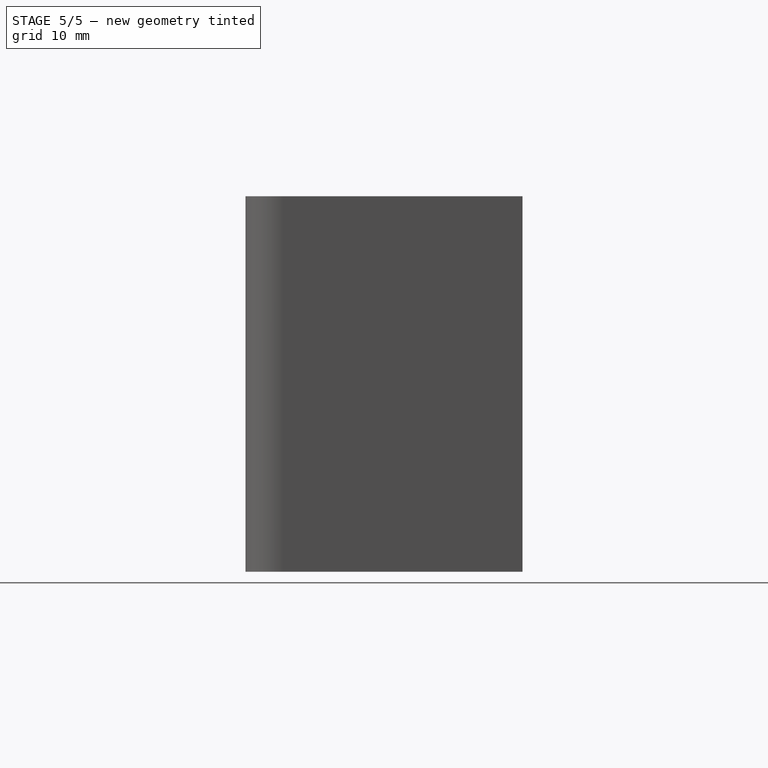
[diagram: stage 5 of 5 — right view after this stage's code; geometry added in this stage tinted green]
FEATURE [PartDesign::Fillet] Fillet002
  Base = -> Fillet001 [Edge58]
  Radius = 2
FEATURE [PartDesign::Fillet] Fillet003
  Base = -> Fillet002 [Edge54]
  Radius = 2
FEATURE [PartDesign::Fillet] Fillet004
  Base = -> Fillet003 [Edge68]
  Radius = 2
FEATURE [PartDesign::Fillet] Fillet005
  Base = -> Fillet004 [Edge67]
  Radius = 2
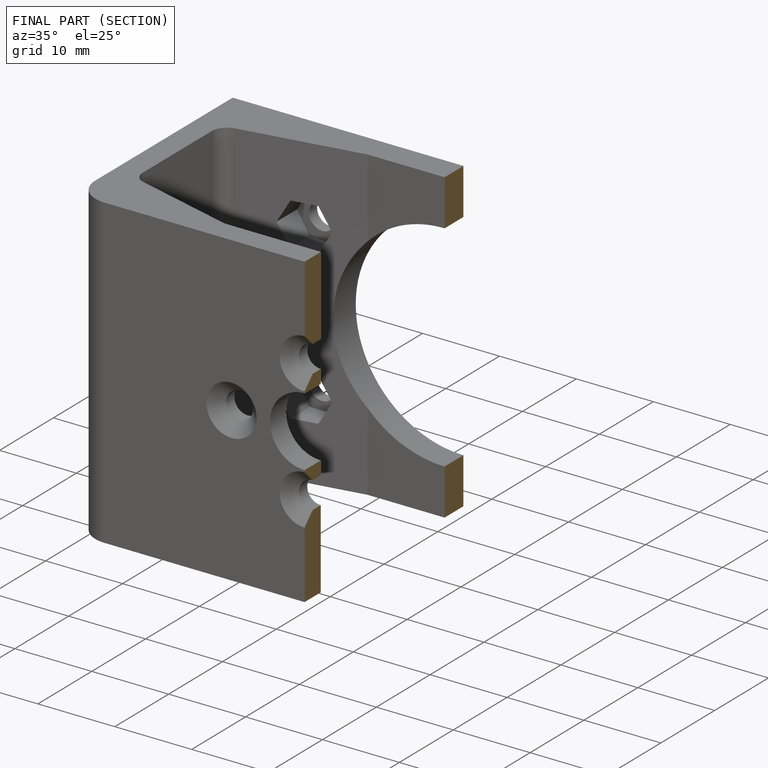
[diagram: finished part — half-section view (interior)]
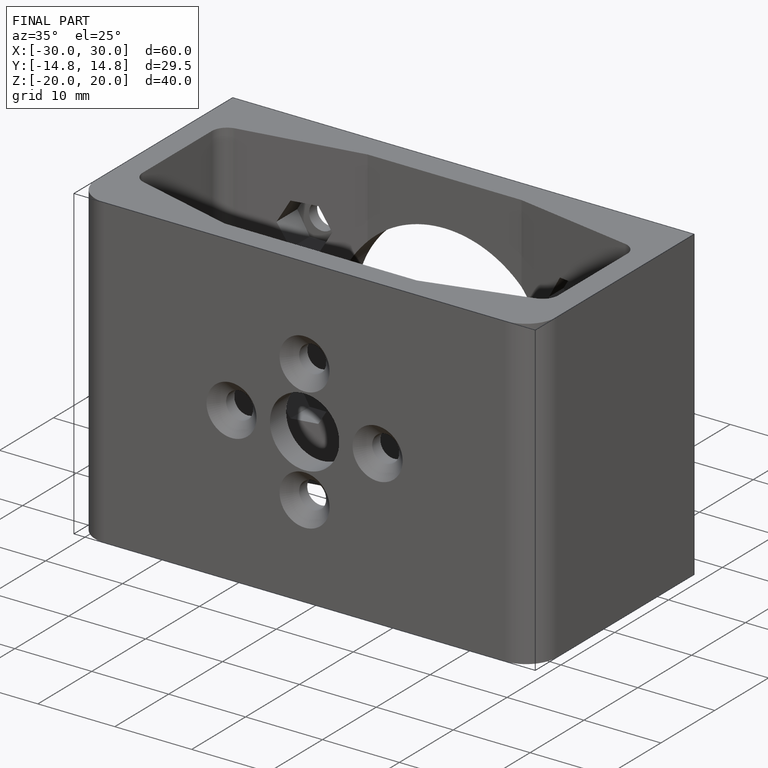
[diagram: finished part — iso view with bounding-box wireframe]
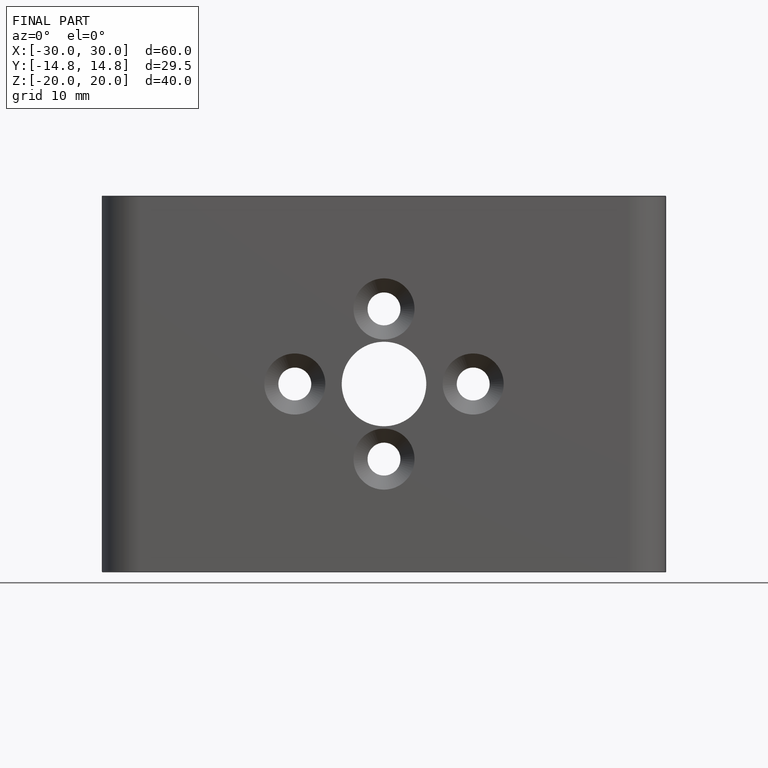
[diagram: finished part — front view with bounding-box wireframe]
